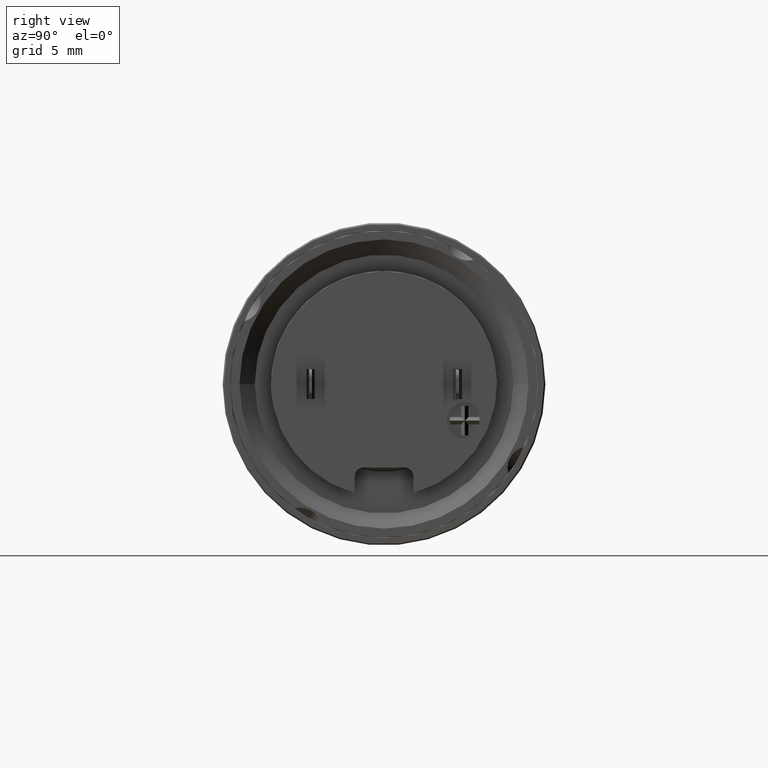
[diagram: clean part render]
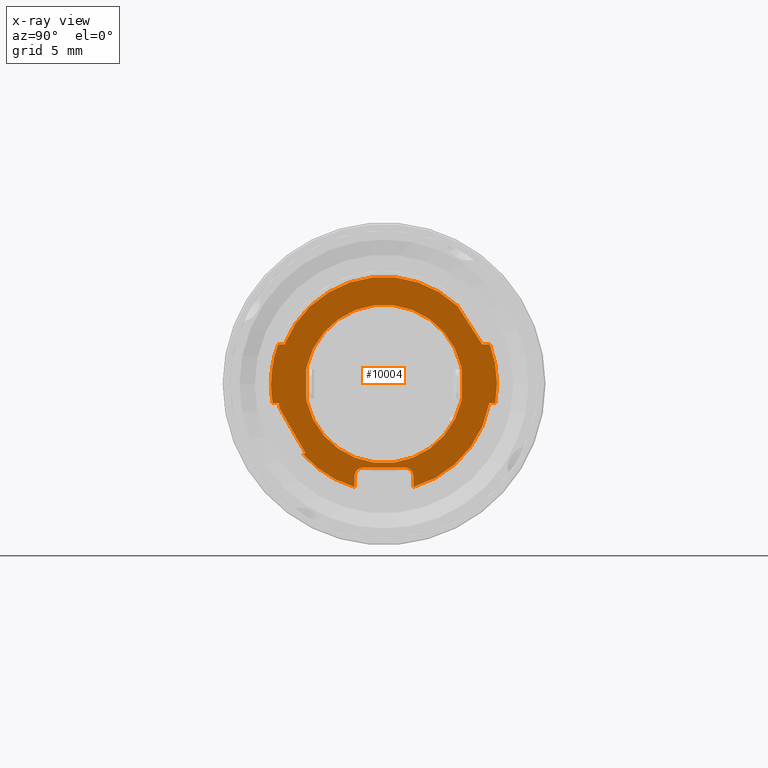
[diagram: x-ray — body ghosted, one internal face saturated and labeled with its STEP entity id]
A machine part, right view, then the same camera in x-ray: the body is ghosted and one INTERNAL B-rep face — a face not visible from any outside direction — is saturated and labeled: STEP entity #10004.
In plain terms, the highlighted planar face has unit normal (1, 0, 0).
Its self-contained STEP definition (entity closure, byte-faithful):
#535=DIRECTION('',(0.E0,1.E0,0.E0));
#536=VECTOR('',#535,2.777777777800E-2);
#537=CARTESIAN_POINT('',(9.6E0,5.272222222222E0,-1.025E0));
#538=LINE('',#537,#536);
#555=DIRECTION('',(-1.244260747955E-14,-5.412534253604E-13,1.E0));
#556=VECTOR('',#555,1.427640341721E-1);
#557=CARTESIAN_POINT('',(9.6E0,5.272222222222E0,-1.167764034172E0));
#558=LINE('',#557,#556);
#3379=DIRECTION('',(0.E0,-2.230663574833E-13,1.E0));
#3380=VECTOR('',#3379,7.206837273871E-1);
#3381=CARTESIAN_POINT('',(9.6E0,2.E0,-7.020683727387E0));
#3382=LINE('',#3381,#3380);
#3409=DIRECTION('',(2.624172947001E-14,-1.E0,3.214611860076E-13));
#3410=VECTOR('',#3409,4.061523859768E-1);
#3411=CARTESIAN_POINT('',(9.6E0,7.589466384404E0,-1.3E0));
#3412=LINE('',#3411,#3410);
#3413=CARTESIAN_POINT('',(9.6E0,0.E0,0.E0));
#3414=DIRECTION('',(1.E0,0.E0,0.E0));
#3415=DIRECTION('',(0.E0,6.870828080225E-1,7.265791181419E-1));
#3416=AXIS2_PLACEMENT_3D('',#3413,#3414,#3415);
#3418=CARTESIAN_POINT('',(9.6E0,1.107080706430E-14,0.E0));
#3419=DIRECTION('',(1.E0,0.E0,0.E0));
#3420=DIRECTION('',(0.E0,-9.365068247958E-1,3.506493506493E-1));
#3421=AXIS2_PLACEMENT_3D('',#3418,#3419,#3420);
#3423=CARTESIAN_POINT('',(9.6E0,1.107080706430E-14,0.E0));
#3424=DIRECTION('',(1.E0,0.E0,0.E0));
#3425=DIRECTION('',(0.E0,-1.E0,0.E0));
#3426=AXIS2_PLACEMENT_3D('',#3423,#3424,#3425);
#3428=CARTESIAN_POINT('',(9.6E0,0.E0,0.E0));
#3429=DIRECTION('',(1.E0,0.E0,0.E0));
#3430=DIRECTION('',(0.E0,-9.840156162229E-1,-1.780821917808E-1));
#3431=AXIS2_PLACEMENT_3D('',#3428,#3429,#3430);
#3433=DIRECTION('',(0.E0,4.987146757065E-1,-8.667662154439E-1));
#3434=VECTOR('',#3433,3.504228502517E0);
#3435=CARTESIAN_POINT('',(9.6E0,-7.106263011234E0,-1.670636410223E0));
#3436=LINE('',#3435,#3434);
#3437=DIRECTION('',(-1.032183144530E-14,-8.902128046100E-1,-4.555449072358E-1));
#3438=VECTOR('',#3437,1.720970594040E-1);
#3439=CARTESIAN_POINT('',(9.6E0,-5.35865283E0,-4.707983287400E0));
#3440=LINE('',#3439,#3438);
#3441=CARTESIAN_POINT('',(9.6E0,0.E0,0.E0));
#3442=DIRECTION('',(1.E0,0.E0,0.E0));
#3443=DIRECTION('',(0.E0,-7.550487446461E-1,-6.556686611455E-1));
#3444=AXIS2_PLACEMENT_3D('',#3441,#3442,#3443);
#3446=CARTESIAN_POINT('',(9.6E0,-1.4E0,-6.3E0));
#3447=DIRECTION('',(-1.E0,0.E0,0.E0));
#3448=DIRECTION('',(0.E0,-1.E0,0.E0));
#3449=AXIS2_PLACEMENT_3D('',#3446,#3447,#3448);
#3451=CARTESIAN_POINT('',(9.6E0,1.4E0,-6.3E0));
#3452=DIRECTION('',(-1.E0,0.E0,0.E0));
#3453=DIRECTION('',(0.E0,0.E0,1.E0));
#3454=AXIS2_PLACEMENT_3D('',#3451,#3452,#3453);
#3456=CARTESIAN_POINT('',(9.6E0,0.E0,0.E0));
#3457=DIRECTION('',(1.E0,0.E0,0.E0));
#3458=DIRECTION('',(0.E0,2.739726027397E-1,-9.617374969024E-1));
#3459=AXIS2_PLACEMENT_3D('',#3456,#3457,#3458);
#3461=CARTESIAN_POINT('',(9.6E0,1.107080706430E-14,0.E0));
#3462=DIRECTION('',(1.E0,0.E0,0.E0));
#3463=DIRECTION('',(0.E0,9.856449849875E-1,-1.688311688312E-1));
#3464=AXIS2_PLACEMENT_3D('',#3461,#3462,#3463);
#3466=DIRECTION('',(0.E0,-5.406808604176E-1,8.412277974355E-1));
#3467=VECTOR('',#3466,3.095508220692E0);
#3468=CARTESIAN_POINT('',(9.6E0,6.689386546758E0,2.7E0));
#3469=LINE('',#3468,#3467);
#3470=CARTESIAN_POINT('',(9.6E0,1.107080706430E-14,0.E0));
#3471=DIRECTION('',(-1.E0,0.E0,0.E0));
#3472=DIRECTION('',(0.E0,9.763374485597E-1,-2.162525989208E-1));
#3473=AXIS2_PLACEMENT_3D('',#3470,#3471,#3472);
#3475=CARTESIAN_POINT('',(9.6E0,1.107080706430E-14,0.E0));
#3476=DIRECTION('',(-1.E0,0.E0,0.E0));
#3477=DIRECTION('',(0.E0,-9.763374485597E-1,2.162525989208E-1));
#3478=AXIS2_PLACEMENT_3D('',#3475,#3476,#3477);
#3498=DIRECTION('',(2.071444132379E-14,1.E0,-4.629677635868E-13));
#3499=VECTOR('',#3498,4.287725678027E-1);
#3500=CARTESIAN_POINT('',(9.6E0,-7.211102550928E0,2.7E0));
#3501=LINE('',#3500,#3499);
#3568=DIRECTION('',(0.E0,1.E0,-3.634661215878E-13));
#3569=VECTOR('',#3568,5.217160041701E-1);
#3570=CARTESIAN_POINT('',(9.6E0,6.689386546758E0,2.7E0));
#3571=LINE('',#3570,#3569);
#3576=DIRECTION('',(0.E0,-1.E0,4.313484281631E-13));
#3577=VECTOR('',#3576,4.061523859770E-1);
#3578=CARTESIAN_POINT('',(9.6E0,-7.183313998427E0,-1.3E0));
#3579=LINE('',#3578,#3577);
#3620=DIRECTION('',(0.E0,7.302034077836E-14,-1.E0));
#3621=VECTOR('',#3620,7.206837273872E-1);
#3622=CARTESIAN_POINT('',(9.6E0,-2.E0,-6.3E0));
#3623=LINE('',#3622,#3621);
#3670=DIRECTION('',(0.E0,-1.E0,0.E0));
#3671=VECTOR('',#3670,2.8E0);
#3672=CARTESIAN_POINT('',(9.6E0,1.4E0,-5.7E0));
#3673=LINE('',#3672,#3671);
#3686=DIRECTION('',(0.E0,0.E0,1.E0));
#3687=VECTOR('',#3686,2.05E0);
#3688=CARTESIAN_POINT('',(9.6E0,5.3E0,-1.025E0));
#3689=LINE('',#3688,#3687);
#3706=DIRECTION('',(-1.278976924358E-13,-1.E0,0.E0));
#3707=VECTOR('',#3706,2.777777777800E-2);
#3708=CARTESIAN_POINT('',(9.6E0,5.3E0,1.025E0));
#3709=LINE('',#3708,#3707);
#3718=DIRECTION('',(1.244260747955E-14,1.169605103077E-12,1.E0));
#3719=VECTOR('',#3718,1.427640341721E-1);
#3720=CARTESIAN_POINT('',(9.6E0,5.272222222222E0,1.025E0));
#3721=LINE('',#3720,#3719);
#3742=DIRECTION('',(0.E0,4.852616917024E-13,-1.E0));
#3743=VECTOR('',#3742,1.427640341721E-1);
#3744=CARTESIAN_POINT('',(9.6E0,-5.272222222222E0,1.167764034172E0));
#3745=LINE('',#3744,#3743);
#3754=DIRECTION('',(-6.394884621790E-14,-1.E0,-3.996802888619E-14));
#3755=VECTOR('',#3754,2.777777777800E-2);
#3756=CARTESIAN_POINT('',(9.6E0,-5.272222222222E0,1.025E0));
#3757=LINE('',#3756,#3755);
#3770=DIRECTION('',(0.E0,0.E0,-1.E0));
#3771=VECTOR('',#3770,2.05E0);
#3772=CARTESIAN_POINT('',(9.6E0,-5.3E0,1.025E0));
#3773=LINE('',#3772,#3771);
#3786=DIRECTION('',(-1.278976924358E-13,1.E0,0.E0));
#3787=VECTOR('',#3786,2.777777777800E-2);
#3788=CARTESIAN_POINT('',(9.6E0,-5.3E0,-1.025E0));
#3789=LINE('',#3788,#3787);
#3798=DIRECTION('',(1.244260747955E-14,-1.063842939501E-12,-1.E0));
#3799=VECTOR('',#3798,1.427640341721E-1);
#3800=CARTESIAN_POINT('',(9.6E0,-5.272222222222E0,-1.025E0));
#3801=LINE('',#3800,#3799);
#4872=CARTESIAN_POINT('',(9.6E0,7.589466384404E0,-1.3E0));
#4873=CARTESIAN_POINT('',(9.6E0,7.211102550928E0,2.7E0));
#4874=VERTEX_POINT('',#4872);
#4875=VERTEX_POINT('',#4873);
#4882=CARTESIAN_POINT('',(9.6E0,-7.7E0,0.E0));
#4883=CARTESIAN_POINT('',(9.6E0,-7.589466384404E0,-1.3E0));
#4884=VERTEX_POINT('',#4882);
#4885=VERTEX_POINT('',#4883);
#4886=CARTESIAN_POINT('',(9.6E0,-7.211102550928E0,2.7E0));
#4887=VERTEX_POINT('',#4886);
#4888=CARTESIAN_POINT('',(9.6E0,-6.782329983125E0,2.7E0));
#4889=VERTEX_POINT('',#4888);
#4890=CARTESIAN_POINT('',(9.6E0,-7.183313998427E0,-1.3E0));
#4891=VERTEX_POINT('',#4890);
#4892=CARTESIAN_POINT('',(9.6E0,-7.106263011234E0,-1.670636410223E0));
#4893=CARTESIAN_POINT('',(9.6E0,-5.35865283E0,-4.707983287400E0));
#4894=VERTEX_POINT('',#4892);
#4895=VERTEX_POINT('',#4893);
#4896=CARTESIAN_POINT('',(9.6E0,-5.511855835917E0,-4.786381226362E0));
#4897=VERTEX_POINT('',#4896);
#4898=CARTESIAN_POINT('',(9.6E0,-2.E0,-6.3E0));
#4899=CARTESIAN_POINT('',(9.6E0,-2.E0,-7.020683727387E0));
#4900=VERTEX_POINT('',#4898);
#4901=VERTEX_POINT('',#4899);
#4902=CARTESIAN_POINT('',(9.6E0,-1.4E0,-5.7E0));
#4903=VERTEX_POINT('',#4902);
#4904=CARTESIAN_POINT('',(9.6E0,1.4E0,-5.7E0));
#4905=VERTEX_POINT('',#4904);
#4906=CARTESIAN_POINT('',(9.6E0,2.E0,-6.3E0));
#4907=VERTEX_POINT('',#4906);
#4908=CARTESIAN_POINT('',(9.6E0,2.E0,-7.020683727387E0));
#4909=VERTEX_POINT('',#4908);
#4910=CARTESIAN_POINT('',(9.6E0,7.183313998427E0,-1.3E0));
#4911=VERTEX_POINT('',#4910);
#4912=CARTESIAN_POINT('',(9.6E0,6.689386546758E0,2.7E0));
#4913=CARTESIAN_POINT('',(9.6E0,5.015704498565E0,5.304027562436E0));
#4914=VERTEX_POINT('',#4912);
#4915=VERTEX_POINT('',#4913);
#4916=CARTESIAN_POINT('',(9.6E0,5.3E0,1.025E0));
#4917=CARTESIAN_POINT('',(9.6E0,5.272222222222E0,1.025E0));
#4918=VERTEX_POINT('',#4916);
#4919=VERTEX_POINT('',#4917);
#4920=CARTESIAN_POINT('',(9.6E0,5.3E0,-1.025E0));
#4921=VERTEX_POINT('',#4920);
#4922=CARTESIAN_POINT('',(9.6E0,5.272222222222E0,-1.025E0));
#4923=VERTEX_POINT('',#4922);
#4924=CARTESIAN_POINT('',(9.6E0,5.272222222222E0,-1.167764034172E0));
#4925=VERTEX_POINT('',#4924);
#4926=CARTESIAN_POINT('',(9.6E0,-5.272222222222E0,-1.167764034172E0));
#4927=VERTEX_POINT('',#4926);
#4928=CARTESIAN_POINT('',(9.6E0,-5.272222222222E0,-1.025E0));
#4929=VERTEX_POINT('',#4928);
#4930=CARTESIAN_POINT('',(9.6E0,-5.3E0,-1.025E0));
#4931=VERTEX_POINT('',#4930);
#4932=CARTESIAN_POINT('',(9.6E0,-5.3E0,1.025E0));
#4933=VERTEX_POINT('',#4932);
#4934=CARTESIAN_POINT('',(9.6E0,-5.272222222222E0,1.025E0));
#4935=VERTEX_POINT('',#4934);
#4936=CARTESIAN_POINT('',(9.6E0,-5.272222222222E0,1.167764034172E0));
#4937=VERTEX_POINT('',#4936);
#4938=CARTESIAN_POINT('',(9.6E0,5.272222222222E0,1.167764034172E0));
#4939=VERTEX_POINT('',#4938);
#9944=CARTESIAN_POINT('',(9.6E0,7.945603359443E-4,1.412469907507E-1));
#9945=DIRECTION('',(1.E0,0.E0,0.E0));
#9946=DIRECTION('',(0.E0,-1.E0,0.E0));
#9947=AXIS2_PLACEMENT_3D('',#9944,#9945,#9946);
#9948=PLANE('',#9947);
#9950=ORIENTED_EDGE('',*,*,#9949,.T.);
#9952=ORIENTED_EDGE('',*,*,#9951,.F.);
#9953=ORIENTED_EDGE('',*,*,#9885,.T.);
#9954=ORIENTED_EDGE('',*,*,#9883,.T.);
#9956=ORIENTED_EDGE('',*,*,#9955,.F.);
#9958=ORIENTED_EDGE('',*,*,#9957,.T.);
#9959=ORIENTED_EDGE('',*,*,#8060,.T.);
#9960=ORIENTED_EDGE('',*,*,#8078,.T.);
#9962=ORIENTED_EDGE('',*,*,#9961,.T.);
#9964=ORIENTED_EDGE('',*,*,#9963,.F.);
#9966=ORIENTED_EDGE('',*,*,#9965,.T.);
#9968=ORIENTED_EDGE('',*,*,#9967,.F.);
#9970=ORIENTED_EDGE('',*,*,#9969,.T.);
#9971=ORIENTED_EDGE('',*,*,#9907,.F.);
#9972=ORIENTED_EDGE('',*,*,#9925,.T.);
#9973=ORIENTED_EDGE('',*,*,#9938,.F.);
#9974=ORIENTED_EDGE('',*,*,#9892,.T.);
#9976=ORIENTED_EDGE('',*,*,#9975,.F.);
#9978=ORIENTED_EDGE('',*,*,#9977,.T.);
#9979=EDGE_LOOP('',(#9950,#9952,#9953,#9954,#9956,#9958,#9959,#9960,#9962,#9964,
#9966,#9968,#9970,#9971,#9972,#9973,#9974,#9976,#9978));
#9980=FACE_OUTER_BOUND('',#9979,.F.);
#9982=ORIENTED_EDGE('',*,*,#9981,.F.);
#9984=ORIENTED_EDGE('',*,*,#9983,.F.);
#9985=ORIENTED_EDGE('',*,*,#6325,.F.);
#9986=ORIENTED_EDGE('',*,*,#6343,.F.);
#9987=ORIENTED_EDGE('',*,*,#6361,.T.);
#9989=ORIENTED_EDGE('',*,*,#9988,.F.);
#9991=ORIENTED_EDGE('',*,*,#9990,.F.);
#9993=ORIENTED_EDGE('',*,*,#9992,.F.);
#9995=ORIENTED_EDGE('',*,*,#9994,.F.);
#9997=ORIENTED_EDGE('',*,*,#9996,.F.);
#9999=ORIENTED_EDGE('',*,*,#9998,.T.);
#10001=ORIENTED_EDGE('',*,*,#10000,.F.);
#10002=EDGE_LOOP('',(#9982,#9984,#9985,#9986,#9987,#9989,#9991,#9993,#9995,
#9997,#9999,#10001));
#10003=FACE_BOUND('',#10002,.F.);
#10004=ADVANCED_FACE('',(#9980,#10003),#9948,.F.);
#3417=CIRCLE('',#3416,7.3E0);
#3422=CIRCLE('',#3421,7.7E0);
#3427=CIRCLE('',#3426,7.7E0);
#3432=CIRCLE('',#3431,7.3E0);
#3445=CIRCLE('',#3444,7.3E0);
#3450=CIRCLE('',#3449,6.E-1);
#3455=CIRCLE('',#3454,6.E-1);
#3460=CIRCLE('',#3459,7.3E0);
#3465=CIRCLE('',#3464,7.7E0);
#3474=CIRCLE('',#3473,5.4E0);
#3479=CIRCLE('',#3478,5.4E0);
#6325=EDGE_CURVE('',#4923,#4921,#538,.T.);
#6343=EDGE_CURVE('',#4925,#4923,#558,.T.);
#6361=EDGE_CURVE('',#4925,#4927,#3474,.T.);
#8060=EDGE_CURVE('',#4894,#4895,#3436,.T.);
#8078=EDGE_CURVE('',#4895,#4897,#3440,.T.);
#9883=EDGE_CURVE('',#4884,#4885,#3427,.T.);
#9885=EDGE_CURVE('',#4887,#4884,#3422,.T.);
#9892=EDGE_CURVE('',#4874,#4875,#3465,.T.);
#9907=EDGE_CURVE('',#4909,#4907,#3382,.T.);
#9925=EDGE_CURVE('',#4909,#4911,#3460,.T.);
#9938=EDGE_CURVE('',#4874,#4911,#3412,.T.);
#9949=EDGE_CURVE('',#4915,#4889,#3417,.T.);
#9951=EDGE_CURVE('',#4887,#4889,#3501,.T.);
#9955=EDGE_CURVE('',#4891,#4885,#3579,.T.);
#9957=EDGE_CURVE('',#4891,#4894,#3432,.T.);
#9961=EDGE_CURVE('',#4897,#4901,#3445,.T.);
#9963=EDGE_CURVE('',#4900,#4901,#3623,.T.);
#9965=EDGE_CURVE('',#4900,#4903,#3450,.T.);
#9967=EDGE_CURVE('',#4905,#4903,#3673,.T.);
#9969=EDGE_CURVE('',#4905,#4907,#3455,.T.);
#9975=EDGE_CURVE('',#4914,#4875,#3571,.T.);
#9977=EDGE_CURVE('',#4914,#4915,#3469,.T.);
#9981=EDGE_CURVE('',#4918,#4919,#3709,.T.);
#9983=EDGE_CURVE('',#4921,#4918,#3689,.T.);
#9988=EDGE_CURVE('',#4929,#4927,#3801,.T.);
#9990=EDGE_CURVE('',#4931,#4929,#3789,.T.);
#9992=EDGE_CURVE('',#4933,#4931,#3773,.T.);
#9994=EDGE_CURVE('',#4935,#4933,#3757,.T.);
#9996=EDGE_CURVE('',#4937,#4935,#3745,.T.);
#9998=EDGE_CURVE('',#4937,#4939,#3479,.T.);
#10000=EDGE_CURVE('',#4919,#4939,#3721,.T.);